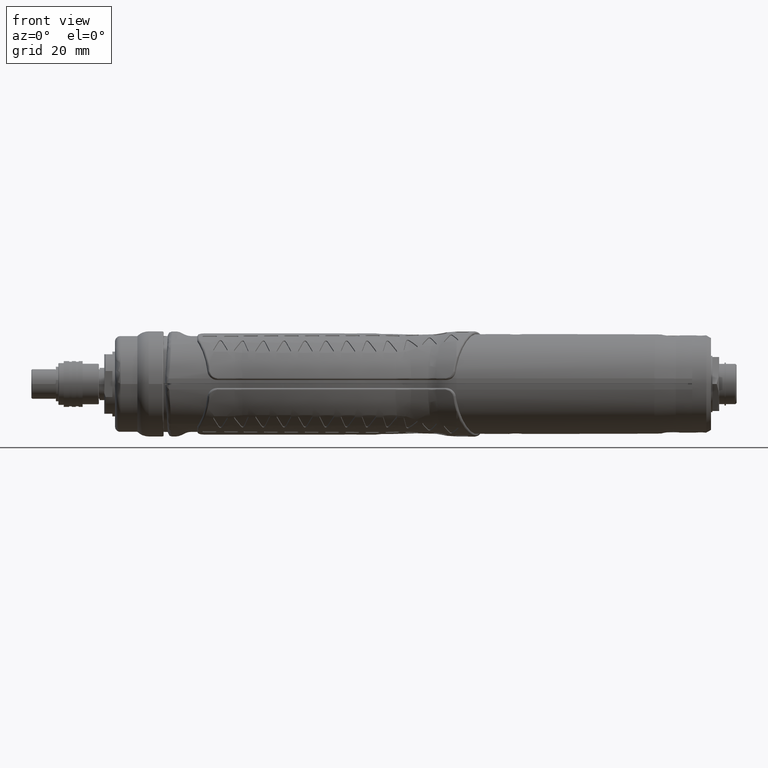
[diagram: clean part render]
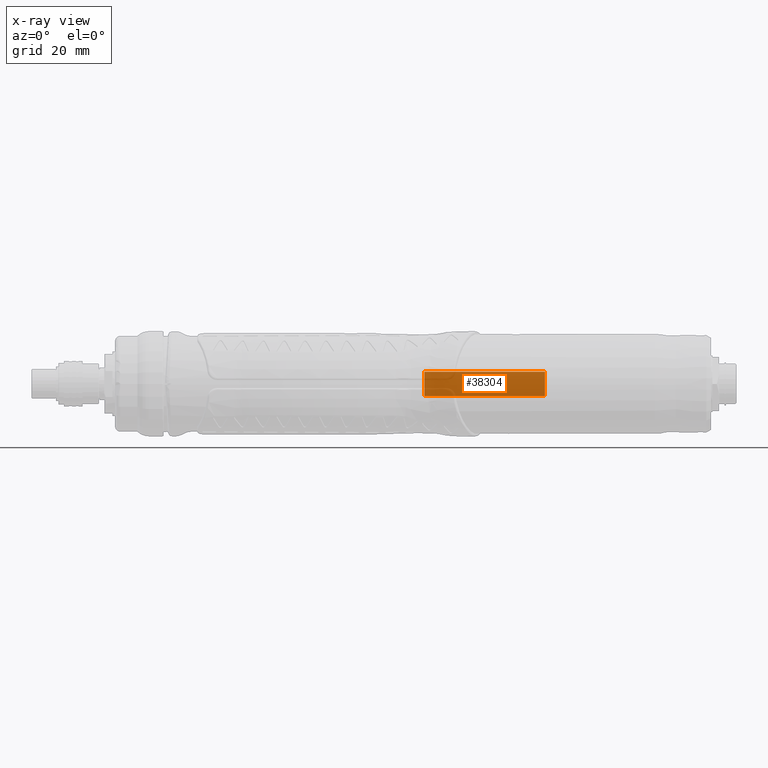
[diagram: x-ray — body ghosted, one internal face saturated and labeled with its STEP entity id]
A machine part, front view, then the same camera in x-ray: the body is ghosted and one INTERNAL B-rep face — a face not visible from any outside direction — is saturated and labeled: STEP entity #38304.
In plain terms, the highlighted planar face has unit normal (-0, 1, 0).
Its self-contained STEP definition (entity closure, byte-faithful):
#1087=PLANE('',#41749);
#2861=LINE('',#94697,#4775);
#2862=LINE('',#94699,#4776);
#2863=LINE('',#94701,#4777);
#2864=LINE('',#94703,#4778);
#2996=LINE('',#96025,#4910);
#3002=LINE('',#96036,#4916);
#3003=LINE('',#96037,#4917);
#4775=VECTOR('',#49987,10.);
#4776=VECTOR('',#49988,10.);
#4777=VECTOR('',#49989,10.);
#4778=VECTOR('',#49990,10.);
#4910=VECTOR('',#50490,10.);
#4916=VECTOR('',#50504,10.);
#4917=VECTOR('',#50505,10.);
#8560=FACE_OUTER_BOUND('',#10974,.T.);
#10974=EDGE_LOOP('',(#35396,#35397,#35398,#35399,#35400,#35401,#35402,#35403,
#35404));
#12297=B_SPLINE_CURVE_WITH_KNOTS('',3,(#54351,#54352,#54353,#54354),
 .UNSPECIFIED.,.F.,.F.,(4,4),(-7.85474348352028E-5,0.),.UNSPECIFIED.);
#12315=B_SPLINE_CURVE_WITH_KNOTS('',3,(#55205,#55206,#55207,#55208),
 .UNSPECIFIED.,.F.,.F.,(4,4),(-0.00406053504294196,-0.00398198372828534),
 .UNSPECIFIED.);
#14551=VERTEX_POINT('',#54345);
#14552=VERTEX_POINT('',#54350);
#14570=VERTEX_POINT('',#55148);
#14571=VERTEX_POINT('',#55204);
#17811=VERTEX_POINT('',#94696);
#17812=VERTEX_POINT('',#94698);
#17813=VERTEX_POINT('',#94700);
#17814=VERTEX_POINT('',#94702);
#17927=VERTEX_POINT('',#96024);
#18384=EDGE_CURVE('',#14551,#14552,#12297,.T.);
#18410=EDGE_CURVE('',#14570,#14571,#12315,.T.);
#23489=EDGE_CURVE('',#14552,#17811,#2861,.T.);
#23490=EDGE_CURVE('',#17811,#17812,#2862,.T.);
#23491=EDGE_CURVE('',#17812,#17813,#2863,.T.);
#23492=EDGE_CURVE('',#17813,#17814,#2864,.T.);
#23752=EDGE_CURVE('',#17927,#14570,#2996,.T.);
#23758=EDGE_CURVE('',#14571,#14551,#3002,.T.);
#23759=EDGE_CURVE('',#17927,#17814,#3003,.T.);
#35396=ORIENTED_EDGE('',*,*,#18384,.F.);
#35397=ORIENTED_EDGE('',*,*,#23758,.F.);
#35398=ORIENTED_EDGE('',*,*,#18410,.F.);
#35399=ORIENTED_EDGE('',*,*,#23752,.F.);
#35400=ORIENTED_EDGE('',*,*,#23759,.T.);
#35401=ORIENTED_EDGE('',*,*,#23492,.F.);
#35402=ORIENTED_EDGE('',*,*,#23491,.F.);
#35403=ORIENTED_EDGE('',*,*,#23490,.F.);
#35404=ORIENTED_EDGE('',*,*,#23489,.F.);
#38304=ADVANCED_FACE('',(#8560),#1087,.T.);
#41749=AXIS2_PLACEMENT_3D('',#96035,#50502,#50503);
#49987=DIRECTION('',(-0.999999999999991,-6.88394017608677E-9,-1.31353403450055E-7));
#49988=DIRECTION('',(-1.,0.,0.));
#49989=DIRECTION('',(-0.999999999999991,-6.88394017608677E-9,-1.31353403450055E-7));
#49990=DIRECTION('',(-1.,0.,0.));
#50490=DIRECTION('',(0.999999999999991,6.88394017608677E-9,-1.31353403450055E-7));
#50502=DIRECTION('center_axis',(-6.88394017608683E-9,1.,0.));
#50503=DIRECTION('ref_axis',(-1.,-6.88394017608683E-9,4.97128299131863E-17));
#50504=DIRECTION('',(0.,0.,1.));
#50505=DIRECTION('',(0.,0.,1.));
#54345=CARTESIAN_POINT('',(140.766317141667,21.435835314248,4.5));
#54350=CARTESIAN_POINT('',(140.765532485724,21.4358353142426,4.50000586685611));
#54351=CARTESIAN_POINT('Ctrl Pts',(140.766317141766,21.435835314248,4.50000000662429));
#54352=CARTESIAN_POINT('Ctrl Pts',(140.766055863149,21.4358353142462,4.5000039078608));
#54353=CARTESIAN_POINT('Ctrl Pts',(140.765794310507,21.4358353142444,4.5000058668905));
#54354=CARTESIAN_POINT('Ctrl Pts',(140.765532485724,21.4358353142426,4.50000586685611));
#55148=CARTESIAN_POINT('',(140.765532347164,21.4358353142426,-4.5));
#55204=CARTESIAN_POINT('',(140.766317141667,21.435835314248,-4.5));
#55205=CARTESIAN_POINT('Ctrl Pts',(140.765532347198,21.4358353142426,-4.50000586685514));
#55206=CARTESIAN_POINT('Ctrl Pts',(140.765794338534,21.4358353142444,-4.50000586534077));
#55207=CARTESIAN_POINT('Ctrl Pts',(140.766055730503,21.4358353142462,-4.50000390539098));
#55208=CARTESIAN_POINT('Ctrl Pts',(140.766317141667,21.435835314248,-4.5));
#94696=CARTESIAN_POINT('',(119.263753853653,21.4358350067737,4.5));
#94697=CARTESIAN_POINT('',(141.383157683385,21.4358353184943,4.50000594798331));
#94698=CARTESIAN_POINT('',(103.936246146347,21.4358350067737,4.5));
#94699=CARTESIAN_POINT('',(126.8,21.4358350067737,4.5));
#94700=CARTESIAN_POINT('',(96.1637538536527,21.4358350067737,4.5));
#94701=CARTESIAN_POINT('',(141.383157683385,21.4358353184943,4.50000594798331));
#94702=CARTESIAN_POINT('',(96.100864518513,21.4358350067737,4.5));
#94703=CARTESIAN_POINT('',(116.,21.4358350067737,4.5));
#96024=CARTESIAN_POINT('',(96.100864518513,21.4358350067737,-4.5));
#96025=CARTESIAN_POINT('',(141.383158274476,21.4358353184943,-4.50000594798339));
#96035=CARTESIAN_POINT('Origin',(140.766317141667,21.435835314248,-4.5));
#96036=CARTESIAN_POINT('',(140.766317141667,21.435835314248,-4.5));
#96037=CARTESIAN_POINT('',(96.100864518513,21.4358350067737,-4.5));